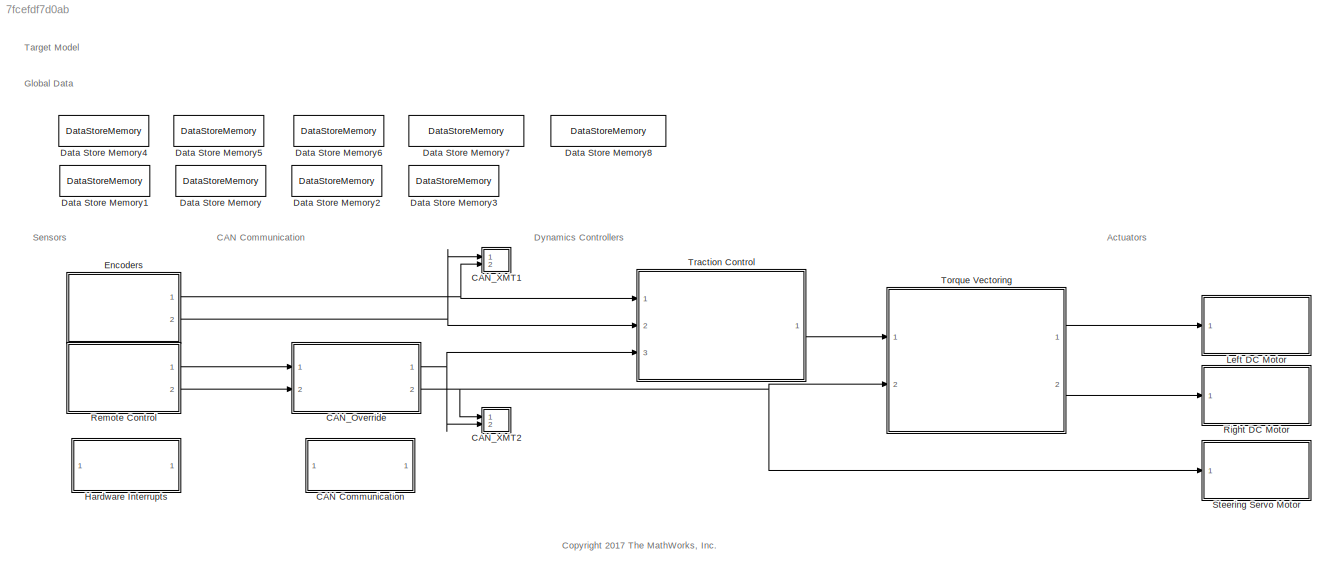
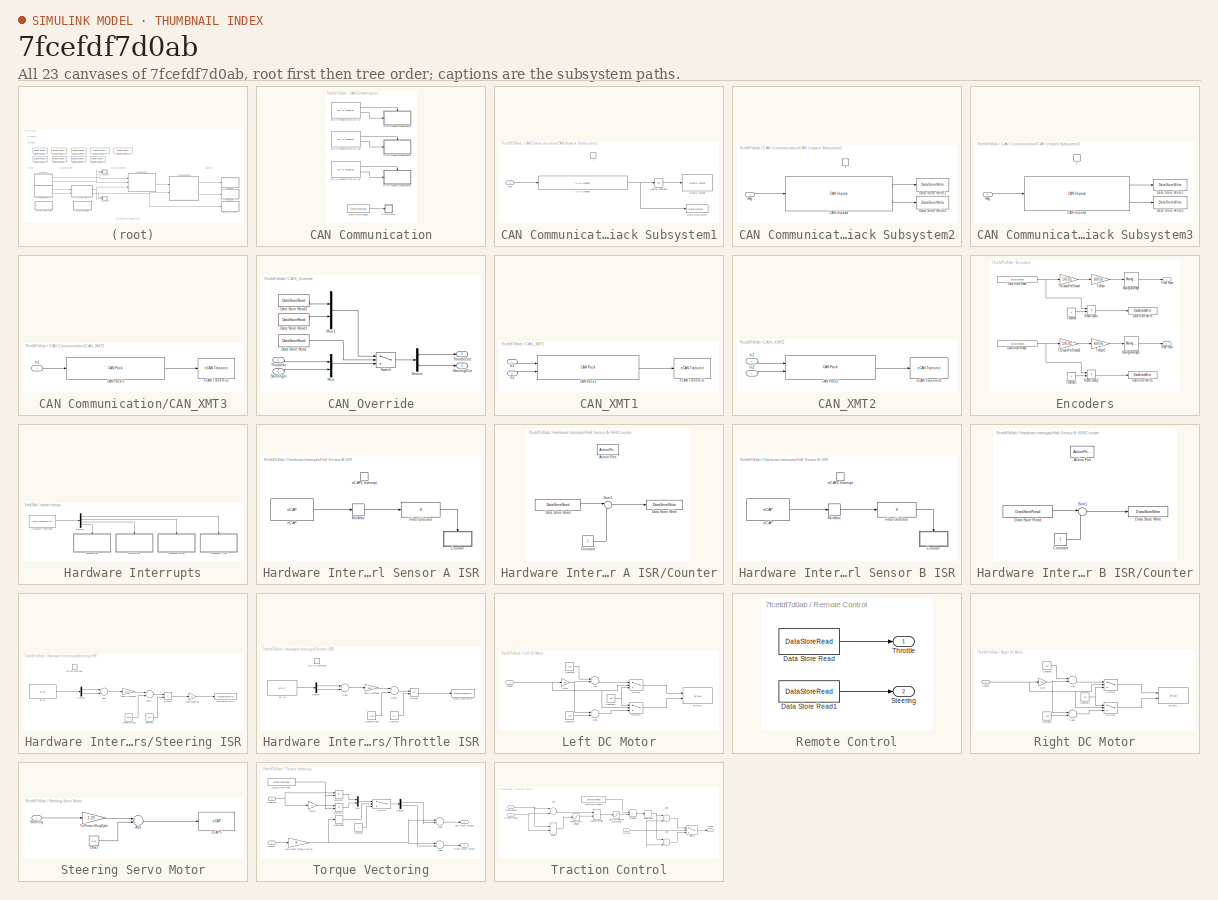
[diagram: thumbnail index - all 23 canvases of the model, root first then tree order]
MODEL slx_7fcefdf7d0ab
KIND model
CONFIG AbsTol = auto
CONFIG EnableMultiTasking = on
CONFIG FixedStep = 0.01
CONFIG MaxStep = auto
CONFIG MinStep = auto
CONFIG RelTol = 1e-3
CONFIG SampleTimeConstraint = Unconstrained
CONFIG Solver = FixedStepDiscrete
CONFIG SolverName = FixedStepDiscrete
CONFIG StartTime = 0.0
CONFIG StopTime = inf
BLOCK [SubSystem] CAN Communication
  Ports = []
  RequestExecContextInheritance = off
BLOCK [SubSystem] CAN Communication/CAN Unpack Subsystem1
  Ports = [1, 0, 0, 1]
  RequestExecContextInheritance = off
  TreatAsAtomicUnit = on
  UserDataPersistent = on
BLOCK [Reference] CAN Communication/CAN Unpack Subsystem1/CAN Unpack  REF=canmsglib/CAN Unpack
  Ports = [1, 1]
  SourceBlock = canmsglib/CAN Unpack
  SourceProductName = Simulink Real-Time
  SourceType = CAN Unpack
BLOCK [DataStoreWrite] CAN Communication/CAN Unpack Subsystem1/Data Store Write
  DataStoreName = ControlsOverride
  Ports = [1]
BLOCK [Reference] CAN Communication/CAN Unpack Subsystem1/Digital Output  REF=c2837xDlib/Digital Output
  Ports = [1]
  SourceBlock = c2837xDlib/Digital Output
  SourceProductBaseCode = TIC2000
  SourceProductName = Embedded Coder Support Package for Texas Instruments C2000 Processors
  SourceType = F2837x GPIO Digital Output
  UserDataPersistent = on
BLOCK [Logic] CAN Communication/CAN Unpack Subsystem1/Logical Operator
  AllPortsSameDT = off
  Operator = NOT
  OutDataTypeStr = boolean
  Ports = [1, 1]
BLOCK [Inport] CAN Communication/CAN Unpack Subsystem1/Msg
  IconDisplay = Port number
BLOCK [TriggerPort] CAN Communication/CAN Unpack Subsystem1/f
  Ports = []
  TriggerType = function-call
  VariantControl = Variant
BLOCK [SubSystem] CAN Communication/CAN Unpack Subsystem2
  Ports = [1, 0, 0, 1]
  RequestExecContextInheritance = off
  TreatAsAtomicUnit = on
  UserDataPersistent = on
BLOCK [Reference] CAN Communication/CAN Unpack Subsystem2/CAN Unpack2  REF=canmsglib/CAN Unpack
  Ports = [1, 2]
  SourceBlock = canmsglib/CAN Unpack
  SourceProductName = Simulink Real-Time
  SourceType = CAN Unpack
BLOCK [DataStoreWrite] CAN Communication/CAN Unpack Subsystem2/Data Store Write1
  DataStoreName = SteeringOverride
  Ports = [1]
BLOCK [DataStoreWrite] CAN Communication/CAN Unpack Subsystem2/Data Store Write2
  DataStoreName = ThrottleOverride
  Ports = [1]
BLOCK [Inport] CAN Communication/CAN Unpack Subsystem2/Msg
  IconDisplay = Port number
BLOCK [TriggerPort] CAN Communication/CAN Unpack Subsystem2/f
  Ports = []
  TriggerType = function-call
  VariantControl = Variant
BLOCK [SubSystem] CAN Communication/CAN Unpack Subsystem3
  Ports = [1, 0, 0, 1]
  RequestExecContextInheritance = off
  TreatAsAtomicUnit = on
  UserDataPersistent = on
BLOCK [Reference] CAN Communication/CAN Unpack Subsystem3/CAN Unpack3  REF=canmsglib/CAN Unpack
  Ports = [1, 2]
  SourceBlock = canmsglib/CAN Unpack
  SourceProductName = Simulink Real-Time
  SourceType = CAN Unpack
BLOCK [DataStoreWrite] CAN Communication/CAN Unpack Subsystem3/Data Store Write1
  DataStoreName = TorqueVectoringGain
  Ports = [1]
BLOCK [DataStoreWrite] CAN Communication/CAN Unpack Subsystem3/Data Store Write2
  DataStoreName = TractionControlGain
  Ports = [1]
BLOCK [Inport] CAN Communication/CAN Unpack Subsystem3/Msg
  IconDisplay = Port number
BLOCK [TriggerPort] CAN Communication/CAN Unpack Subsystem3/f
  Ports = []
  TriggerType = function-call
  VariantControl = Variant
BLOCK [SubSystem] CAN Communication/CAN_XMT3
  Ports = [1]
  RequestExecContextInheritance = off
BLOCK [Reference] CAN Communication/CAN_XMT3/CAN Pack3  REF=canmsglib/CAN Pack
  Ports = [1, 1]
  SourceBlock = canmsglib/CAN Pack
  SourceProductName = Simulink Real-Time
  SourceType = CAN Pack
BLOCK [Inport] CAN Communication/CAN_XMT3/In1
  IconDisplay = Port number
BLOCK [Reference] CAN Communication/CAN_XMT3/eCAN Transmit3  REF=c280xlib/eCAN Transmit
  Ports = [1]
  SourceBlock = c280xlib/eCAN Transmit
  SourceProductBaseCode = TIC2000
  SourceProductName = Embedded Coder Support Package for Texas Instruments C2000 Processors
  SourceType = C28x eCAN Transmit
BLOCK [DataStoreRead] CAN Communication/Data Store Read3
  DataStoreName = ControlsOverride
  Ports = [0, 1]
BLOCK [Reference] CAN Communication/eCAN Receive Std Id = 16  REF=c280xlib/eCAN Receive
  Ports = [0, 2]
  SourceBlock = c280xlib/eCAN Receive
  SourceProductBaseCode = TIC2000
  SourceProductName = Embedded Coder Support Package for Texas Instruments C2000 Processors
  SourceType = C28x eCAN Receive
BLOCK [Reference] CAN Communication/eCAN Receive Std Id = 32  REF=c280xlib/eCAN Receive
  Ports = [0, 2]
  SourceBlock = c280xlib/eCAN Receive
  SourceProductBaseCode = TIC2000
  SourceProductName = Embedded Coder Support Package for Texas Instruments C2000 Processors
  SourceType = C28x eCAN Receive
BLOCK [Reference] CAN Communication/eCAN Receive Std Id = 64  REF=c280xlib/eCAN Receive
  Ports = [0, 2]
  SourceBlock = c280xlib/eCAN Receive
  SourceProductBaseCode = TIC2000
  SourceProductName = Embedded Coder Support Package for Texas Instruments C2000 Processors
  SourceType = C28x eCAN Receive
BLOCK [SubSystem] CAN_Override
  Ports = [2, 2]
  RequestExecContextInheritance = off
BLOCK [DataStoreRead] CAN_Override/Data Store Read
  DataStoreName = ControlsOverride
  Ports = [0, 1]
BLOCK [DataStoreRead] CAN_Override/Data Store Read1
  DataStoreName = SteeringOverride
  Ports = [0, 1]
BLOCK [DataStoreRead] CAN_Override/Data Store Read2
  DataStoreName = ThrottleOverride
  Ports = [0, 1]
BLOCK [Demux] CAN_Override/Demux
  DisplayOption = bar
  Outputs = 2
  Ports = [1, 2]
BLOCK [Mux] CAN_Override/Mux
  DisplayOption = bar
  Inputs = 2
  Ports = [2, 1]
BLOCK [Mux] CAN_Override/Mux1
  DisplayOption = bar
  Inputs = 2
  Ports = [2, 1]
BLOCK [Inport] CAN_Override/SteeringIn
  IconDisplay = Port number
  Port = 2
BLOCK [Outport] CAN_Override/SteeringOut
  IconDisplay = Port number
  Port = 2
BLOCK [Switch] CAN_Override/Switch
  Criteria = u2 > Threshold
  InputSameDT = off
  SaturateOnIntegerOverflow = off
BLOCK [Inport] CAN_Override/ThrottleIn
  IconDisplay = Port number
BLOCK [Outport] CAN_Override/ThrottleOut
  IconDisplay = Port number
BLOCK [SubSystem] CAN_XMT1
  Ports = [2]
  RequestExecContextInheritance = off
BLOCK [Reference] CAN_XMT1/CAN Pack1  REF=canmsglib/CAN Pack
  Ports = [2, 1]
  SourceBlock = canmsglib/CAN Pack
  SourceProductName = Simulink Real-Time
  SourceType = CAN Pack
BLOCK [Inport] CAN_XMT1/In1
  IconDisplay = Port number
BLOCK [Inport] CAN_XMT1/In2
  IconDisplay = Port number
  Port = 2
BLOCK [Reference] CAN_XMT1/eCAN Transmit1  REF=c280xlib/eCAN Transmit
  Ports = [1]
  SourceBlock = c280xlib/eCAN Transmit
  SourceProductBaseCode = TIC2000
  SourceProductName = Embedded Coder Support Package for Texas Instruments C2000 Processors
  SourceType = C28x eCAN Transmit
BLOCK [SubSystem] CAN_XMT2
  Ports = [2]
  RequestExecContextInheritance = off
BLOCK [Reference] CAN_XMT2/CAN Pack2  REF=canmsglib/CAN Pack
  Ports = [2, 1]
  SourceBlock = canmsglib/CAN Pack
  SourceProductName = Simulink Real-Time
  SourceType = CAN Pack
BLOCK [Inport] CAN_XMT2/In1
  IconDisplay = Port number
BLOCK [Inport] CAN_XMT2/In2
  IconDisplay = Port number
  Port = 2
BLOCK [Reference] CAN_XMT2/eCAN Transmit2  REF=c280xlib/eCAN Transmit
  Ports = [1]
  SourceBlock = c280xlib/eCAN Transmit
  SourceProductBaseCode = TIC2000
  SourceProductName = Embedded Coder Support Package for Texas Instruments C2000 Processors
  SourceType = C28x eCAN Transmit
BLOCK [DataStoreMemory] Data Store Memory
  DataStoreName = ThrottleInput
  ReadBeforeWriteMsg = warning
  ShowAdditionalParam = off
  WriteAfterReadMsg = warning
  WriteAfterWriteMsg = warning
BLOCK [DataStoreMemory] Data Store Memory1
  DataStoreName = SteeringInput
  ReadBeforeWriteMsg = warning
  ShowAdditionalParam = off
  WriteAfterReadMsg = warning
  WriteAfterWriteMsg = warning
BLOCK [DataStoreMemory] Data Store Memory2
  DataStoreName = Encoder1Counts
  OutDataTypeStr = double
  ReadBeforeWriteMsg = warning
  ShowAdditionalParam = off
  SignalType = real
  WriteAfterReadMsg = warning
  WriteAfterWriteMsg = warning
BLOCK [DataStoreMemory] Data Store Memory3
  DataStoreName = Encoder2Counts
  OutDataTypeStr = double
  ReadBeforeWriteMsg = warning
  ShowAdditionalParam = off
  SignalType = real
  WriteAfterReadMsg = warning
  WriteAfterWriteMsg = warning
BLOCK [DataStoreMemory] Data Store Memory4
  DataStoreName = ControlsOverride
  OutDataTypeStr = int8
  ReadBeforeWriteMsg = warning
  ShowAdditionalParam = off
  SignalType = real
  WriteAfterReadMsg = warning
  WriteAfterWriteMsg = warning
BLOCK [DataStoreMemory] Data Store Memory5
  DataStoreName = SteeringOverride
  OutDataTypeStr = double
  ReadBeforeWriteMsg = warning
  ShowAdditionalParam = off
  SignalType = real
  WriteAfterReadMsg = warning
  WriteAfterWriteMsg = warning
BLOCK [DataStoreMemory] Data Store Memory6
  DataStoreName = ThrottleOverride
  OutDataTypeStr = double
  ReadBeforeWriteMsg = warning
  ShowAdditionalParam = off
  SignalType = real
  WriteAfterReadMsg = warning
  WriteAfterWriteMsg = warning
BLOCK [DataStoreMemory] Data Store Memory7
  DataStoreName = TorqueVectoringGain
  OutDataTypeStr = double
  ReadBeforeWriteMsg = warning
  ShowAdditionalParam = off
  SignalType = real
  WriteAfterReadMsg = warning
  WriteAfterWriteMsg = warning
BLOCK [DataStoreMemory] Data Store Memory8
  DataStoreName = TractionControlGain
  OutDataTypeStr = double
  ReadBeforeWriteMsg = warning
  ShowAdditionalParam = off
  SignalType = real
  WriteAfterReadMsg = warning
  WriteAfterWriteMsg = warning
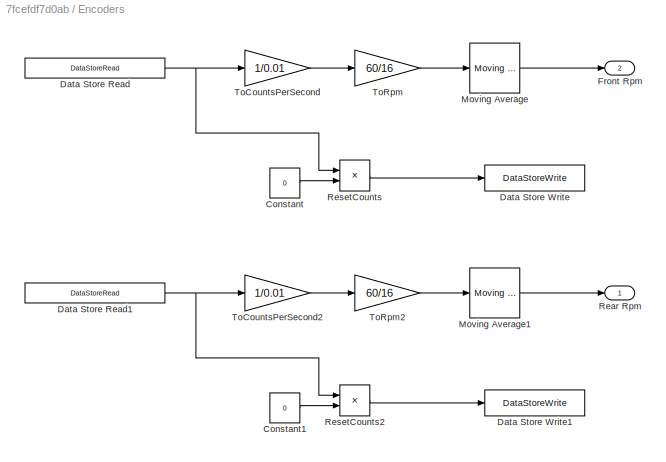
BLOCK [SubSystem] Encoders
  Ports = [0, 2]
  RequestExecContextInheritance = off
BLOCK [Constant] Encoders/Constant
  Value = 0
BLOCK [Constant] Encoders/Constant1
  Value = 0
BLOCK [DataStoreRead] Encoders/Data Store Read
  DataStoreName = Encoder1Counts
  Ports = [0, 1]
  Priority = 1
BLOCK [DataStoreRead] Encoders/Data Store Read1
  DataStoreName = Encoder2Counts
  Ports = [0, 1]
  Priority = 1
BLOCK [DataStoreWrite] Encoders/Data Store Write
  DataStoreName = Encoder1Counts
  Ports = [1]
BLOCK [DataStoreWrite] Encoders/Data Store Write1
  DataStoreName = Encoder2Counts
  Ports = [1]
BLOCK [Outport] Encoders/Front Rpm
  IconDisplay = Port number
  Port = 2
BLOCK [Reference] Encoders/Moving Average  REF=dspstat3/Moving
Average
  Ports = [1, 1]
  SourceBlock = dspstat3/Moving\nAverage
  SourceProductBaseCode = DS
  SourceProductName = DSP System Toolbox
  SourceType = dsp.MovingAverage
BLOCK [Reference] Encoders/Moving Average1  REF=dspstat3/Moving
Average
  Ports = [1, 1]
  SourceBlock = dspstat3/Moving\nAverage
  SourceProductBaseCode = DS
  SourceProductName = DSP System Toolbox
  SourceType = dsp.MovingAverage
BLOCK [Outport] Encoders/Rear Rpm
  IconDisplay = Port number
BLOCK [Product] Encoders/ResetCounts
  InputSameDT = off
  Inputs = **
  OutDataTypeStr = Inherit: Inherit via internal rule
  Ports = [2, 1]
  RndMeth = Floor
  SaturateOnIntegerOverflow = off
BLOCK [Product] Encoders/ResetCounts2
  InputSameDT = off
  Inputs = **
  OutDataTypeStr = Inherit: Inherit via internal rule
  Ports = [2, 1]
  RndMeth = Floor
  SaturateOnIntegerOverflow = off
BLOCK [Gain] Encoders/ToCountsPerSecond
  Gain = 1/0.01
  OutDataTypeStr = Inherit: Inherit via internal rule
  ParamDataTypeStr = Inherit: Inherit via internal rule
  SaturateOnIntegerOverflow = off
BLOCK [Gain] Encoders/ToCountsPerSecond2
  Gain = 1/0.01
  OutDataTypeStr = Inherit: Inherit via internal rule
  ParamDataTypeStr = Inherit: Inherit via internal rule
  SaturateOnIntegerOverflow = off
BLOCK [Gain] Encoders/ToRpm
  Gain = 60/16
  OutDataTypeStr = Inherit: Inherit via internal rule
  ParamDataTypeStr = Inherit: Inherit via internal rule
  SaturateOnIntegerOverflow = off
BLOCK [Gain] Encoders/ToRpm2
  Gain = 60/16
  OutDataTypeStr = Inherit: Inherit via internal rule
  ParamDataTypeStr = Inherit: Inherit via internal rule
  SaturateOnIntegerOverflow = off
BLOCK [SubSystem] Hardware Interrupts
  Ports = []
  RequestExecContextInheritance = off
BLOCK [Demux] Hardware Interrupts/Demux1
  DisplayOption = bar
  Ports = [1, 4]
BLOCK [SubSystem] Hardware Interrupts/Hall Sensor A ISR
  Ports = [0, 0, 0, 1]
  RequestExecContextInheritance = off
  TreatAsAtomicUnit = on
BLOCK [SubSystem] Hardware Interrupts/Hall Sensor A ISR/Counter
  Ports = [0, 0, 0, 0, 0, 0, 0, 1]
  RequestExecContextInheritance = off
  TreatAsAtomicUnit = on
BLOCK [ActionPort] Hardware Interrupts/Hall Sensor A ISR/Counter/Action Port
  ActionPortLabel = if { }
BLOCK [Constant] Hardware Interrupts/Hall Sensor A ISR/Counter/Constant
  OutDataTypeStr = uint16
BLOCK [DataStoreRead] Hardware Interrupts/Hall Sensor A ISR/Counter/Data Store Read
  DataStoreName = Encoder1Counts
  Ports = [0, 1]
BLOCK [DataStoreWrite] Hardware Interrupts/Hall Sensor A ISR/Counter/Data Store Write
  DataStoreName = Encoder1Counts
  Ports = [1]
BLOCK [Sum] Hardware Interrupts/Hall Sensor A ISR/Counter/Sum1
  IconShape = round
  InputSameDT = off
  Inputs = |++
  OutDataTypeStr = Inherit: Inherit via internal rule
  Ports = [2, 1]
  SaturateOnIntegerOverflow = off
BLOCK [If] Hardware Interrupts/Hall Sensor A ISR/Filter Glitches
  IfExpression = u1 > 25000
  Ports = [1, 1]
  ShowElse = off
BLOCK [MinMax] Hardware Interrupts/Hall Sensor A ISR/MinMax
  Function = max
  InputSameDT = off
  Ports = [1, 1]
  SaturateOnIntegerOverflow = off
BLOCK [Reference] Hardware Interrupts/Hall Sensor A ISR/eCAP  REF=c280xlib/eCAP
  Ports = [0, 1]
  SourceBlock = c280xlib/eCAP
  SourceProductBaseCode = TIC2000
  SourceProductName = Embedded Coder Support Package for Texas Instruments C2000 Processors
  SourceType = C28x eCAP
BLOCK [TriggerPort] Hardware Interrupts/Hall Sensor A ISR/eCAP1 Interrupt
  Ports = []
  StatesWhenEnabling = held
  TriggerType = function-call
  VariantControl = Variant
BLOCK [SubSystem] Hardware Interrupts/Hall Sensor B ISR
  Ports = [0, 0, 0, 1]
  RequestExecContextInheritance = off
  TreatAsAtomicUnit = on
BLOCK [SubSystem] Hardware Interrupts/Hall Sensor B ISR/Counter
  Ports = [0, 0, 0, 0, 0, 0, 0, 1]
  RequestExecContextInheritance = off
  TreatAsAtomicUnit = on
BLOCK [ActionPort] Hardware Interrupts/Hall Sensor B ISR/Counter/Action Port
  ActionPortLabel = if { }
BLOCK [Constant] Hardware Interrupts/Hall Sensor B ISR/Counter/Constant
  OutDataTypeStr = uint16
BLOCK [DataStoreRead] Hardware Interrupts/Hall Sensor B ISR/Counter/Data Store Read
  DataStoreName = Encoder2Counts
  Ports = [0, 1]
BLOCK [DataStoreWrite] Hardware Interrupts/Hall Sensor B ISR/Counter/Data Store Write
  DataStoreName = Encoder2Counts
  Ports = [1]
BLOCK [Sum] Hardware Interrupts/Hall Sensor B ISR/Counter/Sum1
  IconShape = round
  InputSameDT = off
  Inputs = |++
  OutDataTypeStr = Inherit: Inherit via internal rule
  Ports = [2, 1]
  SaturateOnIntegerOverflow = off
BLOCK [If] Hardware Interrupts/Hall Sensor B ISR/Filter Glitches
  IfExpression = u1 > 25000
  Ports = [1, 1]
  ShowElse = off
BLOCK [MinMax] Hardware Interrupts/Hall Sensor B ISR/MinMax
  Function = max
  InputSameDT = off
  Ports = [1, 1]
  SaturateOnIntegerOverflow = off
BLOCK [Reference] Hardware Interrupts/Hall Sensor B ISR/eCAP  REF=c280xlib/eCAP
  Ports = [0, 1]
  SourceBlock = c280xlib/eCAP
  SourceProductBaseCode = TIC2000
  SourceProductName = Embedded Coder Support Package for Texas Instruments C2000 Processors
  SourceType = C28x eCAP
BLOCK [TriggerPort] Hardware Interrupts/Hall Sensor B ISR/eCAP2 Interrupt
  Ports = []
  StatesWhenEnabling = held
  TriggerType = function-call
  VariantControl = Variant
BLOCK [Reference] Hardware Interrupts/Hardware Interrupts  REF=c2000lib/Scheduling/C28x Hardware Interrupt
  Ports = [0, 1]
  SourceBlock = c2000lib/Scheduling/C28x Hardware Interrupt
  SourceProductBaseCode = TIC2000
  SourceProductName = Embedded Coder Support Package for Texas Instruments C2000 Processors
  SourceType = C28x Interrupt Block
BLOCK [SubSystem] Hardware Interrupts/Steering ISR
  Ports = [0, 0, 0, 1]
  RequestExecContextInheritance = off
  TreatAsAtomicUnit = on
BLOCK [Constant] Hardware Interrupts/Steering ISR/CenterOffset
  Value = 1.515
BLOCK [DataStoreWrite] Hardware Interrupts/Steering ISR/Data Store Write
  DataStoreName = SteeringInput
  Ports = [1]
BLOCK [Demux] Hardware Interrupts/Steering ISR/Demux
  DisplayOption = bar
  Outputs = 2
  Ports = [1, 2]
BLOCK [Product] Hardware Interrupts/Steering ISR/Divide
  InputSameDT = off
  Inputs = */
  OutDataTypeStr = Inherit: Inherit via internal rule
  Ports = [2, 1]
  RndMeth = Floor
  SaturateOnIntegerOverflow = off
BLOCK [Gain] Hardware Interrupts/Steering ISR/InvertSteering
  Gain = -1
  OutDataTypeStr = Inherit: Inherit via internal rule
  ParamDataTypeStr = Inherit: Inherit via internal rule
  SaturateOnIntegerOverflow = off
BLOCK [Constant] Hardware Interrupts/Steering ISR/Scaling
  Value = 0.4
BLOCK [Sum] Hardware Interrupts/Steering ISR/Sum
  InputSameDT = off
  Inputs = -+
  OutDataTypeStr = Inherit: Inherit via internal rule
  Ports = [2, 1]
  SaturateOnIntegerOverflow = off
BLOCK [Sum] Hardware Interrupts/Steering ISR/Sum1
  InputSameDT = off
  Inputs = +-
  OutDataTypeStr = Inherit: Inherit via internal rule
  Ports = [2, 1]
  SaturateOnIntegerOverflow = off
BLOCK [Gain] Hardware Interrupts/Steering ISR/ToMilliseconds
  Gain = 5e-6
  LockScale = on
  OutDataTypeStr = Inherit: Inherit via internal rule
  ParamDataTypeStr = Inherit: Inherit via internal rule
  SaturateOnIntegerOverflow = off
BLOCK [Reference] Hardware Interrupts/Steering ISR/eCAP  REF=c280xlib/eCAP
  Ports = [0, 1]
  SourceBlock = c280xlib/eCAP
  SourceProductBaseCode = TIC2000
  SourceProductName = Embedded Coder Support Package for Texas Instruments C2000 Processors
  SourceType = C28x eCAP
BLOCK [TriggerPort] Hardware Interrupts/Steering ISR/eCAP4 Interrupt
  Ports = []
  StatesWhenEnabling = held
  TriggerType = function-call
  VariantControl = Variant
BLOCK [SubSystem] Hardware Interrupts/Throttle ISR
  Ports = [0, 0, 0, 1]
  RequestExecContextInheritance = off
  TreatAsAtomicUnit = on
BLOCK [Constant] Hardware Interrupts/Throttle ISR/CenterOffset
  Value = 1.515
BLOCK [DataStoreWrite] Hardware Interrupts/Throttle ISR/Data Store Write
  DataStoreName = ThrottleInput
  Ports = [1]
BLOCK [Demux] Hardware Interrupts/Throttle ISR/Demux
  DisplayOption = bar
  Outputs = 2
  Ports = [1, 2]
BLOCK [Product] Hardware Interrupts/Throttle ISR/Divide
  InputSameDT = off
  Inputs = */
  OutDataTypeStr = Inherit: Inherit via internal rule
  Ports = [2, 1]
  RndMeth = Floor
  SaturateOnIntegerOverflow = off
BLOCK [Constant] Hardware Interrupts/Throttle ISR/Scaling
  Value = 0.4
BLOCK [Sum] Hardware Interrupts/Throttle ISR/Sum
  InputSameDT = off
  Inputs = -+
  OutDataTypeStr = Inherit: Inherit via internal rule
  Ports = [2, 1]
  SaturateOnIntegerOverflow = off
BLOCK [Sum] Hardware Interrupts/Throttle ISR/Sum1
  InputSameDT = off
  Inputs = +-
  OutDataTypeStr = Inherit: Inherit via internal rule
  Ports = [2, 1]
  SaturateOnIntegerOverflow = off
BLOCK [Gain] Hardware Interrupts/Throttle ISR/ToMilliseconds
  Gain = 5e-6
  LockScale = on
  OutDataTypeStr = Inherit: Inherit via internal rule
  ParamDataTypeStr = Inherit: Inherit via internal rule
  SaturateOnIntegerOverflow = off
BLOCK [Reference] Hardware Interrupts/Throttle ISR/eCAP  REF=c280xlib/eCAP
  Ports = [0, 1]
  SourceBlock = c280xlib/eCAP
  SourceProductBaseCode = TIC2000
  SourceProductName = Embedded Coder Support Package for Texas Instruments C2000 Processors
  SourceType = C28x eCAP
BLOCK [TriggerPort] Hardware Interrupts/Throttle ISR/eCAP3 Interrupt
  Ports = []
  StatesWhenEnabling = held
  TriggerType = function-call
  VariantControl = Variant
BLOCK [SubSystem] Left DC Motor
  Ports = [1]
  RequestExecContextInheritance = off
BLOCK [Sum] Left DC Motor/Add
  InputSameDT = off
  Inputs = +-
  OutDataTypeStr = Inherit: Inherit via internal rule
  Ports = [2, 1]
  SaturateOnIntegerOverflow = off
BLOCK [Sum] Left DC Motor/Add1
  InputSameDT = off
  OutDataTypeStr = Inherit: Inherit via internal rule
  Ports = [2, 1]
  SaturateOnIntegerOverflow = off
BLOCK [Constant] Left DC Motor/Constant
  Value = 100
BLOCK [Constant] Left DC Motor/Constant1
  Value = 100
BLOCK [Constant] Left DC Motor/Constant2
  Value = 100
BLOCK [Gain] Left DC Motor/Gain
  Gain = 100
  OutDataTypeStr = Inherit: Inherit via internal rule
  ParamDataTypeStr = Inherit: Inherit via internal rule
  SaturateOnIntegerOverflow = off
BLOCK [Inport] Left DC Motor/Speed
  IconDisplay = Port number
BLOCK [Switch] Left DC Motor/Switch
  Criteria = u2 > Threshold
  InputSameDT = off
  SaturateOnIntegerOverflow = off
BLOCK [Switch] Left DC Motor/Switch1
  Criteria = u2 > Threshold
  InputSameDT = off
  SaturateOnIntegerOverflow = off
BLOCK [Reference] Left DC Motor/ePWM2  REF=c2802xlib/ePWM
  Ports = [2]
  SourceBlock = c2802xlib/ePWM
  SourceProductBaseCode = TIC2000
  SourceProductName = Embedded Coder Support Package for Texas Instruments C2000 Processors
  SourceType = C2802x/03x/05x/06x/M3x/37x/07x ePWM
  UserDataPersistent = on
BLOCK [SubSystem] Remote Control
  Ports = [0, 2]
  RequestExecContextInheritance = off
BLOCK [DataStoreRead] Remote Control/Data Store Read
  DataStoreName = ThrottleInput
  Ports = [0, 1]
BLOCK [DataStoreRead] Remote Control/Data Store Read1
  DataStoreName = SteeringInput
  Ports = [0, 1]
BLOCK [Outport] Remote Control/Steering
  IconDisplay = Port number
  Port = 2
BLOCK [Outport] Remote Control/Throttle
  IconDisplay = Port number
BLOCK [SubSystem] Right DC Motor
  Ports = [1]
  RequestExecContextInheritance = off
BLOCK [Sum] Right DC Motor/Add
  InputSameDT = off
  Inputs = +-
  OutDataTypeStr = Inherit: Inherit via internal rule
  Ports = [2, 1]
  SaturateOnIntegerOverflow = off
BLOCK [Sum] Right DC Motor/Add1
  InputSameDT = off
  OutDataTypeStr = Inherit: Inherit via internal rule
  Ports = [2, 1]
  SaturateOnIntegerOverflow = off
BLOCK [Constant] Right DC Motor/Constant
  Value = 100
BLOCK [Constant] Right DC Motor/Constant1
  Value = 100
BLOCK [Constant] Right DC Motor/Constant2
  Value = 100
BLOCK [Gain] Right DC Motor/Gain
  Gain = 100
  OutDataTypeStr = Inherit: Inherit via internal rule
  ParamDataTypeStr = Inherit: Inherit via internal rule
  SaturateOnIntegerOverflow = off
BLOCK [Inport] Right DC Motor/Speed
  IconDisplay = Port number
BLOCK [Switch] Right DC Motor/Switch
  Criteria = u2 > Threshold
  InputSameDT = off
  SaturateOnIntegerOverflow = off
BLOCK [Switch] Right DC Motor/Switch1
  Criteria = u2 > Threshold
  InputSameDT = off
  SaturateOnIntegerOverflow = off
BLOCK [Reference] Right DC Motor/ePWM1  REF=c2802xlib/ePWM
  Ports = [2]
  SourceBlock = c2802xlib/ePWM
  SourceProductBaseCode = TIC2000
  SourceProductName = Embedded Coder Support Package for Texas Instruments C2000 Processors
  SourceType = C2802x/03x/05x/06x/M3x/37x/07x ePWM
  UserDataPersistent = on
BLOCK [SubSystem] Steering Servo Motor
  Ports = [1]
  RequestExecContextInheritance = off
BLOCK [Sum] Steering Servo Motor/Add
  InputSameDT = off
  OutDataTypeStr = Inherit: Inherit via internal rule
  Ports = [2, 1]
  SaturateOnIntegerOverflow = off
BLOCK [Constant] Steering Servo Motor/Offset
  Value = 6.25
BLOCK [Inport] Steering Servo Motor/Steering
  IconDisplay = Port number
BLOCK [Gain] Steering Servo Motor/ToPercentDutyCycle
  Gain = 1.25
  OutDataTypeStr = Inherit: Inherit via internal rule
  ParamDataTypeStr = Inherit: Inherit via internal rule
  SaturateOnIntegerOverflow = off
BLOCK [Reference] Steering Servo Motor/eCAP5  REF=c280xlib/eCAP
  Ports = [1]
  SourceBlock = c280xlib/eCAP
  SourceProductBaseCode = TIC2000
  SourceProductName = Embedded Coder Support Package for Texas Instruments C2000 Processors
  SourceType = C28x eCAP
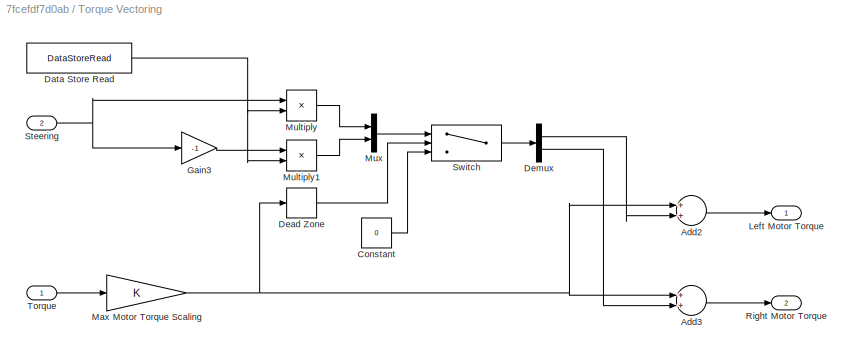
BLOCK [SubSystem] Torque Vectoring
  Ports = [2, 2]
  RequestExecContextInheritance = off
BLOCK [Sum] Torque Vectoring/Add2
  InputSameDT = off
  OutDataTypeStr = Inherit: Inherit via internal rule
  Ports = [2, 1]
  SaturateOnIntegerOverflow = off
BLOCK [Sum] Torque Vectoring/Add3
  InputSameDT = off
  OutDataTypeStr = Inherit: Inherit via internal rule
  Ports = [2, 1]
  SaturateOnIntegerOverflow = off
BLOCK [Constant] Torque Vectoring/Constant
  Value = 0
BLOCK [DataStoreRead] Torque Vectoring/Data Store Read
  DataStoreName = TorqueVectoringGain
  Ports = [0, 1]
BLOCK [DeadZone] Torque Vectoring/Dead Zone
  LowerValue = -0.05
  UpperValue = 0.05
BLOCK [Demux] Torque Vectoring/Demux
  DisplayOption = bar
  Outputs = 2
  Ports = [1, 2]
BLOCK [Gain] Torque Vectoring/Gain3
  Gain = -1
  OutDataTypeStr = Inherit: Inherit via internal rule
  ParamDataTypeStr = Inherit: Inherit via internal rule
  SaturateOnIntegerOverflow = off
BLOCK [Outport] Torque Vectoring/Left Motor Torque
  IconDisplay = Port number
BLOCK [Gain] Torque Vectoring/Max Motor Torque Scaling
  OutDataTypeStr = Inherit: Inherit via internal rule
  ParamDataTypeStr = Inherit: Inherit via internal rule
  SaturateOnIntegerOverflow = off
BLOCK [Product] Torque Vectoring/Multiply
  InputSameDT = off
  Inputs = **
  OutDataTypeStr = Inherit: Inherit via internal rule
  Ports = [2, 1]
  RndMeth = Floor
  SaturateOnIntegerOverflow = off
BLOCK [Product] Torque Vectoring/Multiply1
  InputSameDT = off
  Inputs = **
  OutDataTypeStr = Inherit: Inherit via internal rule
  Ports = [2, 1]
  RndMeth = Floor
  SaturateOnIntegerOverflow = off
BLOCK [Mux] Torque Vectoring/Mux
  DisplayOption = bar
  Inputs = 2
  Ports = [2, 1]
BLOCK [Outport] Torque Vectoring/Right Motor Torque
  IconDisplay = Port number
  Port = 2
BLOCK [Inport] Torque Vectoring/Steering
  IconDisplay = Port number
  Port = 2
BLOCK [Switch] Torque Vectoring/Switch
  Criteria = u2 ~= 0
  InputSameDT = off
  SaturateOnIntegerOverflow = off
  Threshold = 0.05
BLOCK [Inport] Torque Vectoring/Torque
  IconDisplay = Port number
BLOCK [SubSystem] Traction Control
  Ports = [3, 1]
  RequestExecContextInheritance = off
BLOCK [Sum] Traction Control/Add
  InputSameDT = off
  Inputs = -+
  OutDataTypeStr = Inherit: Inherit via internal rule
  Ports = [2, 1]
  SaturateOnIntegerOverflow = off
BLOCK [Sum] Traction Control/Add1
  InputSameDT = off
  Inputs = -+
  OutDataTypeStr = Inherit: Inherit via internal rule
  Ports = [2, 1]
  SaturateOnIntegerOverflow = off
BLOCK [Sum] Traction Control/Add3
  InputSameDT = off
  OutDataTypeStr = Inherit: Inherit via internal rule
  Ports = [2, 1]
  SaturateOnIntegerOverflow = off
BLOCK [Product] Traction Control/CalculateTireSlip
  InputSameDT = off
  Inputs = */
  OutDataTypeStr = Inherit: Inherit via internal rule
  Ports = [2, 1]
  RndMeth = Floor
  SaturateOnIntegerOverflow = off
BLOCK [DataStoreRead] Traction Control/Data Store Read1
  DataStoreName = TractionControlGain
  Ports = [0, 1]
BLOCK [DeadZone] Traction Control/Dead Zone
  LowerValue = -0.05
  UpperValue = 0.05
BLOCK [Inport] Traction Control/Ground Speed
  IconDisplay = Port number
  Port = 2
BLOCK [Saturate] Traction Control/Limit to negative commands
  InputPortMap = u0
  LowerLimit = -1
  Ports = [1, 1]
  UpperLimit = 0
BLOCK [MinMax] Traction Control/Max
  Function = max
  InputSameDT = off
  Inputs = 2
  Ports = [2, 1]
  SaturateOnIntegerOverflow = off
BLOCK [Saturate] Traction Control/Prevent Zero Division
  InputPortMap = u0
  LowerLimit = 0.0001
  Ports = [1, 1]
  UpperLimit = 1000
BLOCK [Product] Traction Control/ScaleSlip
  InputSameDT = off
  Inputs = **
  OutDataTypeStr = Inherit: Inherit via internal rule
  Ports = [2, 1]
  RndMeth = Floor
  SaturateOnIntegerOverflow = off
BLOCK [Switch] Traction Control/Switch
  InputSameDT = off
  SaturateOnIntegerOverflow = off
BLOCK [Inport] Traction Control/Throttle
  IconDisplay = Port number
  Port = 3
BLOCK [Outport] Traction Control/Torque
  IconDisplay = Port number
BLOCK [Inport] Traction Control/Wheel Speed
  IconDisplay = Port number
ANNOTATION (root): Actuators
ANNOTATION (root): CAN Communication
ANNOTATION (root): <copyright redacted>
ANNOTATION (root): Dynamics Controllers
ANNOTATION (root): Global Data
ANNOTATION (root): Sensors
ANNOTATION (root): Target Model
NET CAN Communication/CAN Unpack Subsystem1/CAN Unpack:1 -> CAN Communication/CAN Unpack Subsystem1/Data Store Write:1, CAN Communication/CAN Unpack Subsystem1/Logical Operator:1
LINE CAN Communication/CAN Unpack Subsystem1/Logical Operator:1 -> CAN Communication/CAN Unpack Subsystem1/Digital Output:1
LINE CAN Communication/CAN Unpack Subsystem1/Msg:1 -> CAN Communication/CAN Unpack Subsystem1/CAN Unpack:1
LINE CAN Communication/CAN Unpack Subsystem2/CAN Unpack2:1 -> CAN Communication/CAN Unpack Subsystem2/Data Store Write1:1
LINE CAN Communication/CAN Unpack Subsystem2/CAN Unpack2:2 -> CAN Communication/CAN Unpack Subsystem2/Data Store Write2:1
LINE CAN Communication/CAN Unpack Subsystem2/Msg:1 -> CAN Communication/CAN Unpack Subsystem2/CAN Unpack2:1
LINE CAN Communication/CAN Unpack Subsystem3/CAN Unpack3:1 -> CAN Communication/CAN Unpack Subsystem3/Data Store Write1:1
LINE CAN Communication/CAN Unpack Subsystem3/CAN Unpack3:2 -> CAN Communication/CAN Unpack Subsystem3/Data Store Write2:1
LINE CAN Communication/CAN Unpack Subsystem3/Msg:1 -> CAN Communication/CAN Unpack Subsystem3/CAN Unpack3:1
LINE CAN Communication/CAN_XMT3/CAN Pack3:1 -> CAN Communication/CAN_XMT3/eCAN Transmit3:1
LINE CAN Communication/CAN_XMT3/In1:1 -> CAN Communication/CAN_XMT3/CAN Pack3:1
LINE CAN Communication/Data Store Read3:1 -> CAN Communication/CAN_XMT3:1
LINE CAN Communication/eCAN Receive Std Id = 16:1 -> CAN Communication/CAN Unpack Subsystem3:trigger
LINE CAN Communication/eCAN Receive Std Id = 16:2 -> CAN Communication/CAN Unpack Subsystem3:1
LINE CAN Communication/eCAN Receive Std Id = 32:1 -> CAN Communication/CAN Unpack Subsystem2:trigger
LINE CAN Communication/eCAN Receive Std Id = 32:2 -> CAN Communication/CAN Unpack Subsystem2:1
LINE CAN Communication/eCAN Receive Std Id = 64:1 -> CAN Communication/CAN Unpack Subsystem1:trigger
LINE CAN Communication/eCAN Receive Std Id = 64:2 -> CAN Communication/CAN Unpack Subsystem1:1
LINE CAN_Override/Data Store Read1:1 -> CAN_Override/Mux1:2
LINE CAN_Override/Data Store Read2:1 -> CAN_Override/Mux1:1
LINE CAN_Override/Data Store Read:1 -> CAN_Override/Switch:2
LINE CAN_Override/Demux:1 -> CAN_Override/ThrottleOut:1
LINE CAN_Override/Demux:2 -> CAN_Override/SteeringOut:1
LINE CAN_Override/Mux1:1 -> CAN_Override/Switch:1
LINE CAN_Override/Mux:1 -> CAN_Override/Switch:3
LINE CAN_Override/SteeringIn:1 -> CAN_Override/Mux:2
LINE CAN_Override/Switch:1 -> CAN_Override/Demux:1
LINE CAN_Override/ThrottleIn:1 -> CAN_Override/Mux:1
NET CAN_Override:1 -> CAN_XMT2:2, Traction Control:3
NET CAN_Override:2 -> CAN_XMT2:1, Steering Servo Motor:1, Torque Vectoring:2
LINE CAN_XMT1/CAN Pack1:1 -> CAN_XMT1/eCAN Transmit1:1
LINE CAN_XMT1/In1:1 -> CAN_XMT1/CAN Pack1:1
LINE CAN_XMT1/In2:1 -> CAN_XMT1/CAN Pack1:2
LINE CAN_XMT2/CAN Pack2:1 -> CAN_XMT2/eCAN Transmit2:1
LINE CAN_XMT2/In1:1 -> CAN_XMT2/CAN Pack2:1
LINE CAN_XMT2/In2:1 -> CAN_XMT2/CAN Pack2:2
LINE Encoders/Constant1:1 -> Encoders/ResetCounts2:2
LINE Encoders/Constant:1 -> Encoders/ResetCounts:2
NET Encoders/Data Store Read1:1 -> Encoders/ResetCounts2:1, Encoders/ToCountsPerSecond2:1
NET Encoders/Data Store Read:1 -> Encoders/ResetCounts:1, Encoders/ToCountsPerSecond:1
LINE Encoders/Moving Average1:1 -> Encoders/Rear Rpm:1
LINE Encoders/Moving Average:1 -> Encoders/Front Rpm:1
LINE Encoders/ResetCounts2:1 -> Encoders/Data Store Write1:1
LINE Encoders/ResetCounts:1 -> Encoders/Data Store Write:1
LINE Encoders/ToCountsPerSecond2:1 -> Encoders/ToRpm2:1
LINE Encoders/ToCountsPerSecond:1 -> Encoders/ToRpm:1
LINE Encoders/ToRpm2:1 -> Encoders/Moving Average1:1
LINE Encoders/ToRpm:1 -> Encoders/Moving Average:1
NET Encoders:1 -> CAN_XMT1:2, Traction Control:1
NET Encoders:2 -> CAN_XMT1:1, Traction Control:2
LINE Hardware Interrupts/Demux1:1 -> Hardware Interrupts/Hall Sensor A ISR:trigger
LINE Hardware Interrupts/Demux1:2 -> Hardware Interrupts/Hall Sensor B ISR:trigger
LINE Hardware Interrupts/Demux1:3 -> Hardware Interrupts/Throttle ISR:trigger
LINE Hardware Interrupts/Demux1:4 -> Hardware Interrupts/Steering ISR:trigger
LINE Hardware Interrupts/Hall Sensor A ISR/Counter/Constant:1 -> Hardware Interrupts/Hall Sensor A ISR/Counter/Sum1:2
LINE Hardware Interrupts/Hall Sensor A ISR/Counter/Data Store Read:1 -> Hardware Interrupts/Hall Sensor A ISR/Counter/Sum1:1
LINE Hardware Interrupts/Hall Sensor A ISR/Counter/Sum1:1 -> Hardware Interrupts/Hall Sensor A ISR/Counter/Data Store Write:1
LINE Hardware Interrupts/Hall Sensor A ISR/Filter Glitches:1 -> Hardware Interrupts/Hall Sensor A ISR/Counter:ifaction
LINE Hardware Interrupts/Hall Sensor A ISR/MinMax:1 -> Hardware Interrupts/Hall Sensor A ISR/Filter Glitches:1
LINE Hardware Interrupts/Hall Sensor A ISR/eCAP:1 -> Hardware Interrupts/Hall Sensor A ISR/MinMax:1
LINE Hardware Interrupts/Hall Sensor B ISR/Counter/Constant:1 -> Hardware Interrupts/Hall Sensor B ISR/Counter/Sum1:2
LINE Hardware Interrupts/Hall Sensor B ISR/Counter/Data Store Read:1 -> Hardware Interrupts/Hall Sensor B ISR/Counter/Sum1:1
LINE Hardware Interrupts/Hall Sensor B ISR/Counter/Sum1:1 -> Hardware Interrupts/Hall Sensor B ISR/Counter/Data Store Write:1
LINE Hardware Interrupts/Hall Sensor B ISR/Filter Glitches:1 -> Hardware Interrupts/Hall Sensor B ISR/Counter:ifaction
LINE Hardware Interrupts/Hall Sensor B ISR/MinMax:1 -> Hardware Interrupts/Hall Sensor B ISR/Filter Glitches:1
LINE Hardware Interrupts/Hall Sensor B ISR/eCAP:1 -> Hardware Interrupts/Hall Sensor B ISR/MinMax:1
LINE Hardware Interrupts/Hardware Interrupts:1 -> Hardware Interrupts/Demux1:1
LINE Hardware Interrupts/Steering ISR/CenterOffset:1 -> Hardware Interrupts/Steering ISR/Sum1:2
LINE Hardware Interrupts/Steering ISR/Demux:1 -> Hardware Interrupts/Steering ISR/Sum:1
LINE Hardware Interrupts/Steering ISR/Demux:2 -> Hardware Interrupts/Steering ISR/Sum:2
LINE Hardware Interrupts/Steering ISR/Divide:1 -> Hardware Interrupts/Steering ISR/InvertSteering:1
LINE Hardware Interrupts/Steering ISR/InvertSteering:1 -> Hardware Interrupts/Steering ISR/Data Store Write:1
LINE Hardware Interrupts/Steering ISR/Scaling:1 -> Hardware Interrupts/Steering ISR/Divide:2
LINE Hardware Interrupts/Steering ISR/Sum1:1 -> Hardware Interrupts/Steering ISR/Divide:1
LINE Hardware Interrupts/Steering ISR/Sum:1 -> Hardware Interrupts/Steering ISR/ToMilliseconds:1
LINE Hardware Interrupts/Steering ISR/ToMilliseconds:1 -> Hardware Interrupts/Steering ISR/Sum1:1
LINE Hardware Interrupts/Steering ISR/eCAP:1 -> Hardware Interrupts/Steering ISR/Demux:1
LINE Hardware Interrupts/Throttle ISR/CenterOffset:1 -> Hardware Interrupts/Throttle ISR/Sum1:2
LINE Hardware Interrupts/Throttle ISR/Demux:1 -> Hardware Interrupts/Throttle ISR/Sum:1
LINE Hardware Interrupts/Throttle ISR/Demux:2 -> Hardware Interrupts/Throttle ISR/Sum:2
LINE Hardware Interrupts/Throttle ISR/Divide:1 -> Hardware Interrupts/Throttle ISR/Data Store Write:1
LINE Hardware Interrupts/Throttle ISR/Scaling:1 -> Hardware Interrupts/Throttle ISR/Divide:2
LINE Hardware Interrupts/Throttle ISR/Sum1:1 -> Hardware Interrupts/Throttle ISR/Divide:1
LINE Hardware Interrupts/Throttle ISR/Sum:1 -> Hardware Interrupts/Throttle ISR/ToMilliseconds:1
LINE Hardware Interrupts/Throttle ISR/ToMilliseconds:1 -> Hardware Interrupts/Throttle ISR/Sum1:1
LINE Hardware Interrupts/Throttle ISR/eCAP:1 -> Hardware Interrupts/Throttle ISR/Demux:1
LINE Left DC Motor/Add1:1 -> Left DC Motor/Switch1:3
LINE Left DC Motor/Add:1 -> Left DC Motor/Switch:1
NET Left DC Motor/Constant1:1 -> Left DC Motor/Switch1:1, Left DC Motor/Switch:3
LINE Left DC Motor/Constant2:1 -> Left DC Motor/Add1:2
LINE Left DC Motor/Constant:1 -> Left DC Motor/Add:1
NET Left DC Motor/Gain:1 -> Left DC Motor/Add1:1, Left DC Motor/Add:2
NET Left DC Motor/Speed:1 -> Left DC Motor/Gain:1, Left DC Motor/Switch1:2, Left DC Motor/Switch:2
LINE Left DC Motor/Switch1:1 -> Left DC Motor/ePWM2:2
LINE Left DC Motor/Switch:1 -> Left DC Motor/ePWM2:1
LINE Remote Control/Data Store Read1:1 -> Remote Control/Steering:1
LINE Remote Control/Data Store Read:1 -> Remote Control/Throttle:1
LINE Remote Control:1 -> CAN_Override:1
LINE Remote Control:2 -> CAN_Override:2
LINE Right DC Motor/Add1:1 -> Right DC Motor/Switch1:3
LINE Right DC Motor/Add:1 -> Right DC Motor/Switch:1
NET Right DC Motor/Constant1:1 -> Right DC Motor/Switch1:1, Right DC Motor/Switch:3
LINE Right DC Motor/Constant2:1 -> Right DC Motor/Add1:2
LINE Right DC Motor/Constant:1 -> Right DC Motor/Add:1
NET Right DC Motor/Gain:1 -> Right DC Motor/Add1:1, Right DC Motor/Add:2
NET Right DC Motor/Speed:1 -> Right DC Motor/Gain:1, Right DC Motor/Switch1:2, Right DC Motor/Switch:2
LINE Right DC Motor/Switch1:1 -> Right DC Motor/ePWM1:2
LINE Right DC Motor/Switch:1 -> Right DC Motor/ePWM1:1
LINE Steering Servo Motor/Add:1 -> Steering Servo Motor/eCAP5:1
LINE Steering Servo Motor/Offset:1 -> Steering Servo Motor/Add:2
LINE Steering Servo Motor/Steering:1 -> Steering Servo Motor/ToPercentDutyCycle:1
LINE Steering Servo Motor/ToPercentDutyCycle:1 -> Steering Servo Motor/Add:1
LINE Torque Vectoring/Add2:1 -> Torque Vectoring/Left Motor Torque:1
LINE Torque Vectoring/Add3:1 -> Torque Vectoring/Right Motor Torque:1
LINE Torque Vectoring/Constant:1 -> Torque Vectoring/Switch:3
NET Torque Vectoring/Data Store Read:1 -> Torque Vectoring/Multiply1:2, Torque Vectoring/Multiply:2
LINE Torque Vectoring/Dead Zone:1 -> Torque Vectoring/Switch:2
LINE Torque Vectoring/Demux:1 -> Torque Vectoring/Add2:2
LINE Torque Vectoring/Demux:2 -> Torque Vectoring/Add3:2
LINE Torque Vectoring/Gain3:1 -> Torque Vectoring/Multiply1:1
NET Torque Vectoring/Max Motor Torque Scaling:1 -> Torque Vectoring/Add2:1, Torque Vectoring/Add3:1, Torque Vectoring/Dead Zone:1
LINE Torque Vectoring/Multiply1:1 -> Torque Vectoring/Mux:2
LINE Torque Vectoring/Multiply:1 -> Torque Vectoring/Mux:1
LINE Torque Vectoring/Mux:1 -> Torque Vectoring/Switch:1
NET Torque Vectoring/Steering:1 -> Torque Vectoring/Gain3:1, Torque Vectoring/Multiply:1
LINE Torque Vectoring/Switch:1 -> Torque Vectoring/Demux:1
LINE Torque Vectoring/Torque:1 -> Torque Vectoring/Max Motor Torque Scaling:1
LINE Torque Vectoring:1 -> Left DC Motor:1
LINE Torque Vectoring:2 -> Right DC Motor:1
LINE Traction Control/Add1:1 -> Traction Control/Switch:3
LINE Traction Control/Add3:1 -> Traction Control/Switch:1
LINE Traction Control/Add:1 -> Traction Control/CalculateTireSlip:1
LINE Traction Control/CalculateTireSlip:1 -> Traction Control/Limit to negative commands:1
LINE Traction Control/Data Store Read1:1 -> Traction Control/ScaleSlip:1
NET Traction Control/Dead Zone:1 -> Traction Control/Add1:1, Traction Control/Add3:1
NET Traction Control/Ground Speed:1 -> Traction Control/Add:2, Traction Control/Max:2
LINE Traction Control/Limit to negative commands:1 -> Traction Control/ScaleSlip:2
LINE Traction Control/Max:1 -> Traction Control/Prevent Zero Division:1
LINE Traction Control/Prevent Zero Division:1 -> Traction Control/CalculateTireSlip:2
LINE Traction Control/ScaleSlip:1 -> Traction Control/Dead Zone:1
LINE Traction Control/Switch:1 -> Traction Control/Torque:1
NET Traction Control/Throttle:1 -> Traction Control/Add1:2, Traction Control/Add3:2, Traction Control/Switch:2
NET Traction Control/Wheel Speed:1 -> Traction Control/Add:1, Traction Control/Max:1
LINE Traction Control:1 -> Torque Vectoring:1
note: NET lines group one-source signal fan-out (src -> all destinations, sorted); 1:1 wires keep LINE
